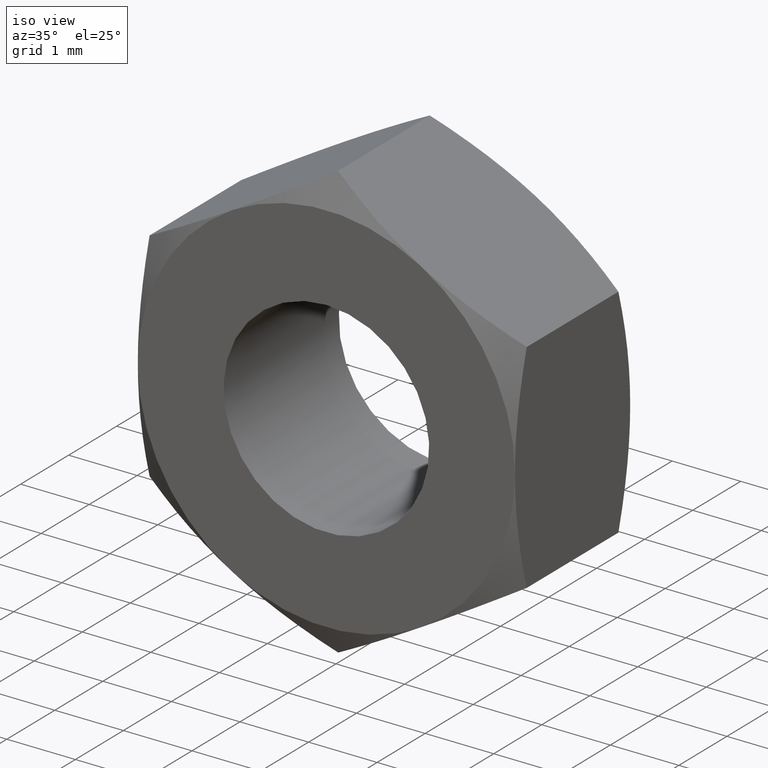
[diagram: clean part render]
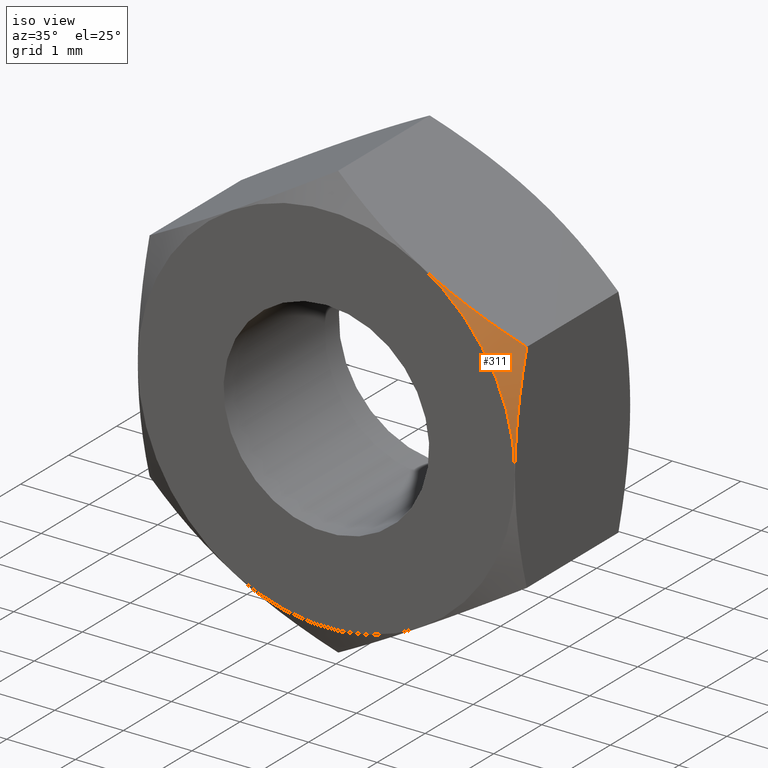
[diagram: same view with one face highlighted and labeled with its STEP entity id]
A machine part, iso view. The second image highlights one B-rep face of the part: STEP entity #311.
In plain terms, the highlighted conical surface has half-angle 60 deg.
Its self-contained STEP definition (entity closure, byte-faithful):
#56=FACE_OUTER_BOUND('',#79,.T.);
#79=EDGE_LOOP('',(#268,#269,#270));
#98=(
BOUNDED_CURVE()
B_SPLINE_CURVE(2,(#530,#531,#532),.UNSPECIFIED.,.F.,.F.)
B_SPLINE_CURVE_WITH_KNOTS((3,3),(-0.886731921730232,-0.556311181235031),
 .UNSPECIFIED.)
CURVE()
GEOMETRIC_REPRESENTATION_ITEM()
RATIONAL_B_SPLINE_CURVE((2.07072231740623,2.07072231740623,1.92205114401652))
REPRESENTATION_ITEM('')
);
#100=(
BOUNDED_CURVE()
B_SPLINE_CURVE(2,(#540,#541,#542),.UNSPECIFIED.,.F.,.F.)
B_SPLINE_CURVE_WITH_KNOTS((3,3),(-1.21715266222543,-0.88673192173023),
 .UNSPECIFIED.)
CURVE()
GEOMETRIC_REPRESENTATION_ITEM()
RATIONAL_B_SPLINE_CURVE((1.92205114401652,2.07072231740623,2.07072231740622))
REPRESENTATION_ITEM('')
);
#121=CIRCLE('',#354,2.75);
#122=VERTEX_POINT('',#446);
#142=VERTEX_POINT('',#529);
#144=VERTEX_POINT('',#539);
#176=EDGE_CURVE('',#122,#142,#98,.T.);
#179=EDGE_CURVE('',#142,#144,#100,.T.);
#192=EDGE_CURVE('',#122,#144,#121,.T.);
#268=ORIENTED_EDGE('',*,*,#192,.T.);
#269=ORIENTED_EDGE('',*,*,#179,.F.);
#270=ORIENTED_EDGE('',*,*,#176,.F.);
#290=CONICAL_SURFACE('',#360,2.75,1.0471975511966);
#311=ADVANCED_FACE('',(#56),#290,.T.);
#354=AXIS2_PLACEMENT_3D('',#574,#422,#423);
#360=AXIS2_PLACEMENT_3D('',#580,#434,#435);
#422=DIRECTION('center_axis',(0.,1.,0.));
#423=DIRECTION('ref_axis',(0.,0.,1.));
#434=DIRECTION('center_axis',(0.,1.,0.));
#435=DIRECTION('ref_axis',(0.,0.,1.));
#446=CARTESIAN_POINT('',(1.375,-1.2,2.38156986040721));
#529=CARTESIAN_POINT('',(2.75,-0.954379906938143,1.58771324027146));
#530=CARTESIAN_POINT('Ctrl Pts',(1.375,-1.20000000000001,2.3815698604072));
#531=CARTESIAN_POINT('Ctrl Pts',(2.01313972082198,-1.20000000000001,2.01313972081003));
#532=CARTESIAN_POINT('Ctrl Pts',(2.75000000001884,-0.954379906931863,1.58771324026058));
#539=CARTESIAN_POINT('',(2.75,-1.2,-7.51157299368579E-16));
#540=CARTESIAN_POINT('Ctrl Pts',(2.75,-0.954379906931861,1.58771324029323));
#541=CARTESIAN_POINT('Ctrl Pts',(2.75,-1.2,0.73686027919433));
#542=CARTESIAN_POINT('Ctrl Pts',(2.75,-1.2,-2.14461014940104E-15));
#574=CARTESIAN_POINT('Origin',(0.,-1.2,0.));
#580=CARTESIAN_POINT('Origin',(0.,-1.2,0.));